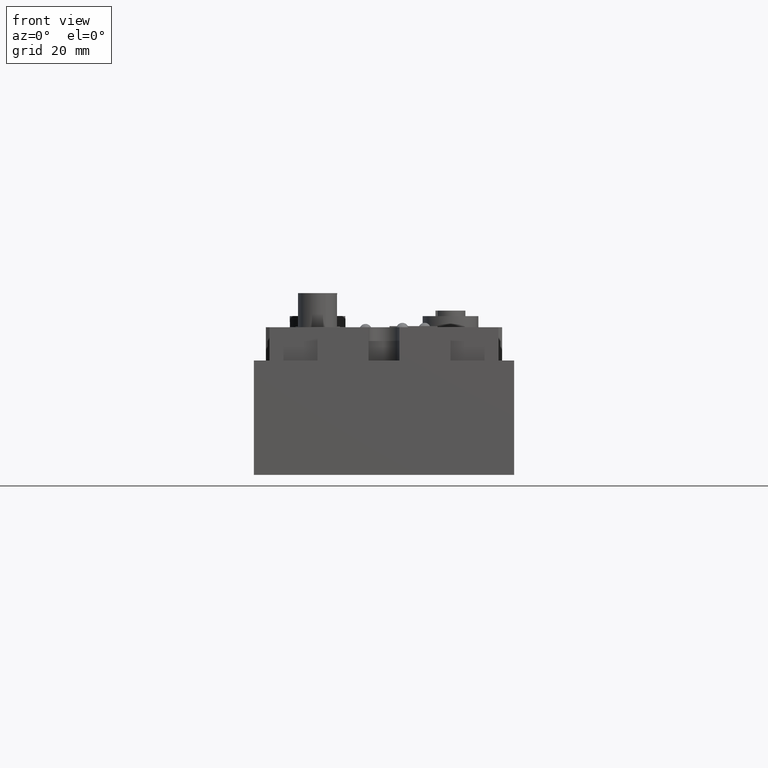
[diagram: clean part render]
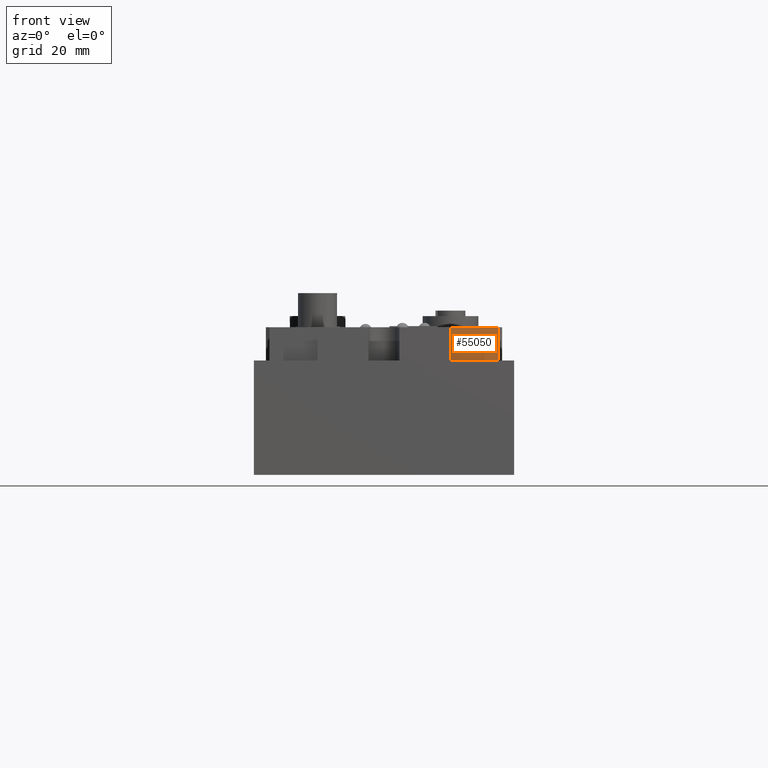
[diagram: same view with one face highlighted and labeled with its STEP entity id]
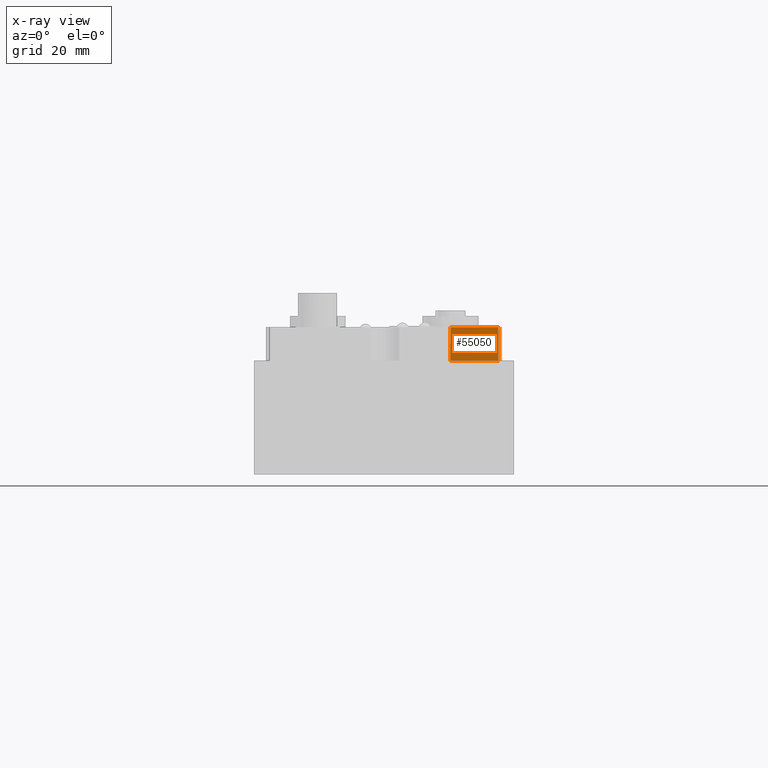
[diagram: x-ray of the same camera — body ghosted, the highlighted face saturated]
A machine part, front view. The second image highlights one B-rep face of the part: STEP entity #55050.
The next image is the same camera in x-ray: the body ghosted, the highlighted face saturated — about 0% of this face is hidden behind the body in this view.
In plain terms, the highlighted planar face has unit normal (0, -1, -0).
Its self-contained STEP definition (entity closure, byte-faithful):
#32090=CARTESIAN_POINT('',(-11.5,-202.675,-9.00000000000003));
#32100=VERTEX_POINT('',#32090);
#32130=CARTESIAN_POINT('',(-11.5,-202.675,0.));
#32140=DIRECTION('',(0.,2.47128706387656E-14,-1.));
#32150=VECTOR('',#32140,1.);
#32160=LINE('',#32130,#32150);
#32170=CARTESIAN_POINT('',(-11.5,-202.675,-5.07231227856334E-12));
#32180=VERTEX_POINT('',#32170);
#32190=EDGE_CURVE('',#32180,#32100,#32160,.T.);
#54750=CARTESIAN_POINT('',(-16.1939167701105,-202.675,-4.17276777723187)
);
#54760=DIRECTION('',(8.6701324168676E-28,-1.,-2.47128706387656E-14));
#54770=DIRECTION('',(1.,8.6701324168676E-28,2.80259692864963E-45));
#54780=AXIS2_PLACEMENT_3D('',#54750,#54760,#54770);
#54790=PLANE('',#54780);
#54800=ORIENTED_EDGE('',*,*,#32190,.F.);
#54810=CARTESIAN_POINT('',(0.,-202.675,-9.00000000000003));
#54820=DIRECTION('',(1.,8.6701324168676E-28,0.));
#54830=VECTOR('',#54820,1.);
#54840=LINE('',#54810,#54830);
#54850=CARTESIAN_POINT('',(-24.5,-202.675,-9.00000000000003));
#54860=VERTEX_POINT('',#54850);
#54870=EDGE_CURVE('',#54860,#32100,#54840,.T.);
#54880=ORIENTED_EDGE('',*,*,#54870,.T.);
#54890=CARTESIAN_POINT('',(-24.5,-202.675,0.));
#54900=DIRECTION('',(0.,2.47128706387656E-14,-1.));
#54910=VECTOR('',#54900,1.);
#54920=LINE('',#54890,#54910);
#54930=CARTESIAN_POINT('',(-24.5,-202.675,-5.82114045217115E-12));
#54940=VERTEX_POINT('',#54930);
#54950=EDGE_CURVE('',#54940,#54860,#54920,.T.);
#54960=ORIENTED_EDGE('',*,*,#54950,.T.);
#54970=CARTESIAN_POINT('',(0.,-202.675,-4.40910329717911E-12));
#54980=DIRECTION('',(1.,-5.49047190033824E-28,5.76021672006006E-14));
#54990=VECTOR('',#54980,1.);
#55000=LINE('',#54970,#54990);
#55010=EDGE_CURVE('',#54940,#32180,#55000,.T.);
#55020=ORIENTED_EDGE('',*,*,#55010,.F.);
#55030=EDGE_LOOP('',(#55020,#54960,#54880,#54800));
#55040=FACE_OUTER_BOUND('',#55030,.T.);
#55050=ADVANCED_FACE('',(#55040),#54790,.T.);